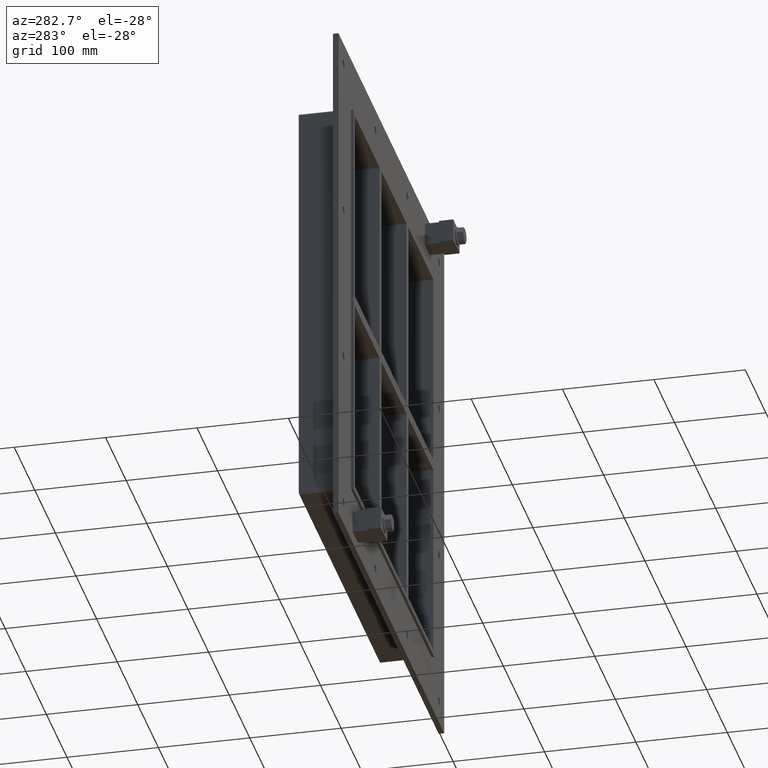
[diagram: clean part render]
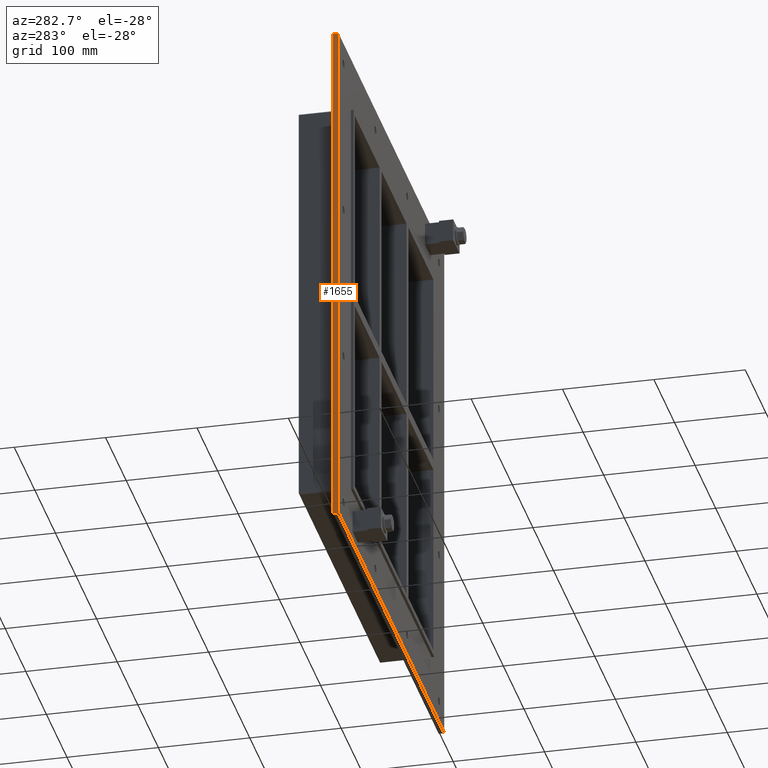
[diagram: same view with one face highlighted and labeled with its STEP entity id]
A machine part, auxiliary view. The second image highlights one B-rep face of the part: STEP entity #1655.
In plain terms, the highlighted planar face has unit normal (-1, 0, 0).
Its self-contained STEP definition (entity closure, byte-faithful):
#1347=CARTESIAN_POINT('',(-256.75000000000006,6.000000000000001,290.0));
#1348=VERTEX_POINT('',#1347);
#1365=CARTESIAN_POINT('',(-256.75000000000006,6.000000000000001,-290.0));
#1366=VERTEX_POINT('',#1365);
#1373=CARTESIAN_POINT('',(-256.75000000000006,6.000000000000001,-290.0));
#1374=DIRECTION('',(0.0,0.0,1.0));
#1375=VECTOR('',#1374,580.0);
#1376=LINE('',#1373,#1375);
#1377=EDGE_CURVE('',#1366,#1348,#1376,.T.);
#1493=CARTESIAN_POINT('',(-256.75000000000006,0.0,290.0));
#1494=VERTEX_POINT('',#1493);
#1503=CARTESIAN_POINT('',(-256.75000000000006,0.0,-290.0));
#1504=VERTEX_POINT('',#1503);
#1505=CARTESIAN_POINT('',(-256.75000000000006,0.0,-290.0));
#1506=DIRECTION('',(0.0,0.0,1.0));
#1507=VECTOR('',#1506,580.0);
#1508=LINE('',#1505,#1507);
#1509=EDGE_CURVE('',#1504,#1494,#1508,.T.);
#1634=CARTESIAN_POINT('',(-256.75000000000006,0.0,-290.0));
#1635=DIRECTION('',(-1.0,0.0,0.0));
#1636=DIRECTION('',(0.0,0.0,1.0));
#1637=AXIS2_PLACEMENT_3D('',#1634,#1635,#1636);
#1638=PLANE('',#1637);
#1639=ORIENTED_EDGE('',*,*,#1509,.T.);
#1640=CARTESIAN_POINT('',(-256.75000000000006,0.0,290.0));
#1641=DIRECTION('',(0.0,1.0,0.0));
#1642=VECTOR('',#1641,6.000000000000001);
#1643=LINE('',#1640,#1642);
#1644=EDGE_CURVE('',#1494,#1348,#1643,.T.);
#1645=ORIENTED_EDGE('',*,*,#1644,.T.);
#1646=ORIENTED_EDGE('',*,*,#1377,.F.);
#1647=CARTESIAN_POINT('',(-256.75000000000006,0.0,-290.0));
#1648=DIRECTION('',(0.0,1.0,0.0));
#1649=VECTOR('',#1648,6.000000000000001);
#1650=LINE('',#1647,#1649);
#1651=EDGE_CURVE('',#1504,#1366,#1650,.T.);
#1652=ORIENTED_EDGE('',*,*,#1651,.F.);
#1653=EDGE_LOOP('',(#1639,#1645,#1646,#1652));
#1654=FACE_OUTER_BOUND('',#1653,.T.);
#1655=ADVANCED_FACE('',(#1654),#1638,.T.);